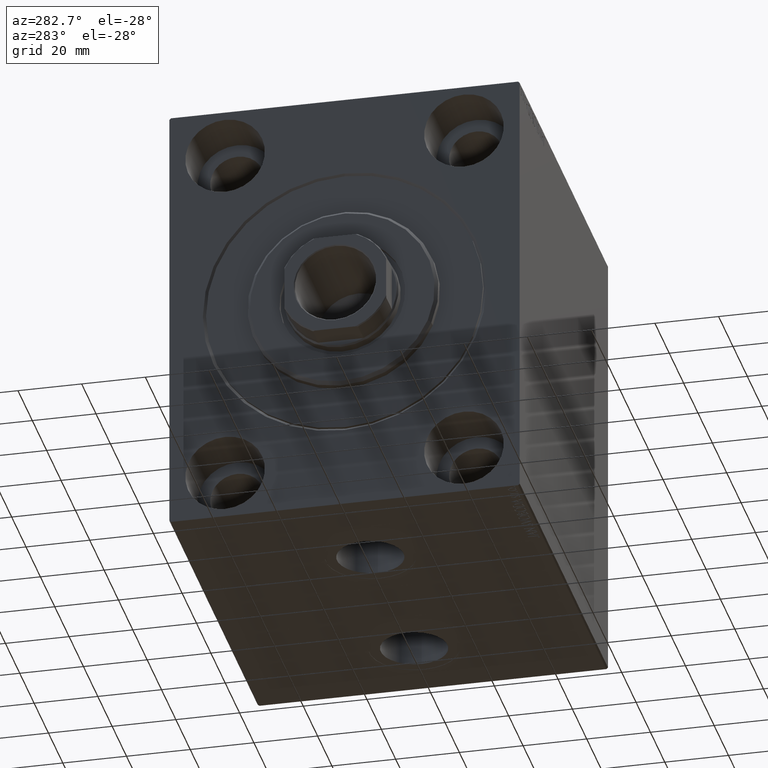
[diagram: clean part render]
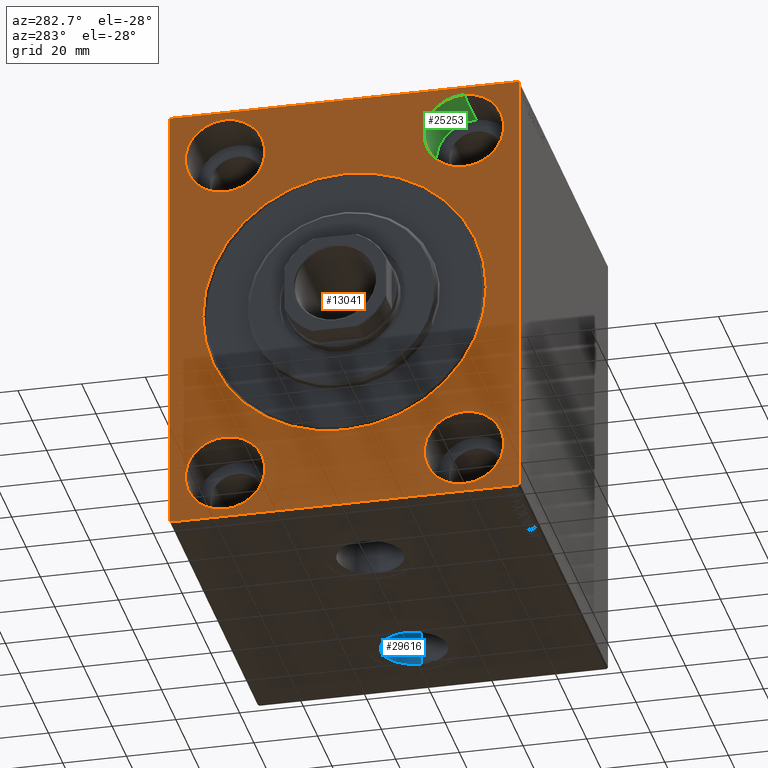
[diagram: same view with three faces highlighted in distinct colors, each labeled with its STEP entity id]
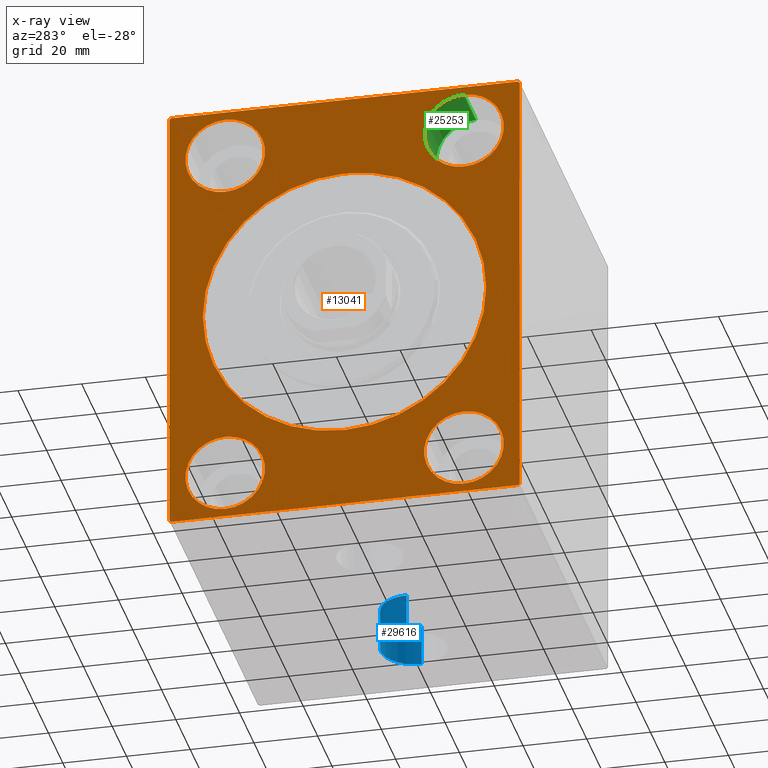
[diagram: x-ray of the same camera — body ghosted, the three highlighted faces saturated]
A machine part, auxiliary view with three faces highlighted in distinct colors.
The next image is the same camera in x-ray (body ghosted, the three faces saturated) — at least one of them is partly hidden behind the body in this view.
Their STEP definitions:

[orange] entity #13041 — the highlighted planar face has unit normal (1, 0, 0).
#368 = CARTESIAN_POINT ( 'NONE',  ( 0.000000000000000000, 54.49999999999999289, 70.00000000000000000 ) ) ;
#592 = PLANE ( 'NONE',  #4342 ) ;
#678 = CARTESIAN_POINT ( 'NONE',  ( 0.000000000000000000, 54.99999999999999289, 69.50000000000000000 ) ) ;
#905 = EDGE_LOOP ( 'NONE', ( #3699, #19877, #31545, #32181, #3441, #26418, #3486, #43349 ) ) ;
#1541 = DIRECTION ( 'NONE',  ( -1.000000000000000000, 0.000000000000000000, 0.000000000000000000 ) ) ;
#1833 = CARTESIAN_POINT ( 'NONE',  ( 0.000000000000000000, -37.50000000000000711, 55.00000000000000711 ) ) ;
#2081 = CARTESIAN_POINT ( 'NONE',  ( 0.000000000000000000, -55.00000000000000711, -69.50000000000007105 ) ) ;
#3178 = ORIENTED_EDGE ( 'NONE', *, *, #27347, .F. ) ;
#3441 = ORIENTED_EDGE ( 'NONE', *, *, #16307, .F. ) ;
#3486 = ORIENTED_EDGE ( 'NONE', *, *, #11565, .F. ) ;
#3699 = ORIENTED_EDGE ( 'NONE', *, *, #35076, .F. ) ;
#3733 = ORIENTED_EDGE ( 'NONE', *, *, #37913, .F. ) ;
#3775 = CARTESIAN_POINT ( 'NONE',  ( 0.000000000000000000, 54.49999999999999289, 70.00000000000000000 ) ) ;
#4229 = CARTESIAN_POINT ( 'NONE',  ( 0.000000000000000000, 0.000000000000000000, 0.000000000000000000 ) ) ;
#4342 = AXIS2_PLACEMENT_3D ( 'NONE', #30893, #17748, #17964 ) ;
#4411 = DIRECTION ( 'NONE',  ( 0.000000000000000000, 0.000000000000000000, 1.000000000000000000 ) ) ;
#4829 = CARTESIAN_POINT ( 'NONE',  ( 0.000000000000000000, -37.50000000000002132, -54.99999999999999289 ) ) ;
#4908 = CARTESIAN_POINT ( 'NONE',  ( 0.000000000000000000, -37.50000000000002132, -42.49999999999999289 ) ) ;
#4965 = CARTESIAN_POINT ( 'NONE',  ( 0.000000000000000000, 55.00000000000002132, -70.00000000000000000 ) ) ;
#5003 = AXIS2_PLACEMENT_3D ( 'NONE', #32264, #39389, #22706 ) ;
#5114 = CARTESIAN_POINT ( 'NONE',  ( 0.000000000000000000, -37.50000000000002132, -54.99999999999999289 ) ) ;
#5134 = AXIS2_PLACEMENT_3D ( 'NONE', #20125, #23690, #30135 ) ;
#5436 = DIRECTION ( 'NONE',  ( -0.000000000000000000, 0.7071067811865474617, 0.7071067811865474617 ) ) ;
#5691 = DIRECTION ( 'NONE',  ( 1.000000000000000000, 0.000000000000000000, 0.000000000000000000 ) ) ;
#5998 = CIRCLE ( 'NONE', #25197, 44.49999999999998579 ) ;
#6323 = CARTESIAN_POINT ( 'NONE',  ( 0.000000000000000000, -55.00000000000000711, 69.50000000000001421 ) ) ;
#6436 = VECTOR ( 'NONE', #29351, 1000.000000000000114 ) ;
#6630 = VERTEX_POINT ( 'NONE', #2081 ) ;
#6649 = EDGE_CURVE ( 'NONE', #37281, #20352, #29270, .T. ) ;
#6789 = VECTOR ( 'NONE', #37524, 999.9999999999998863 ) ;
#6804 = LINE ( 'NONE', #30628, #6789 ) ;
#7228 = EDGE_CURVE ( 'NONE', #22519, #29040, #32764, .T. ) ;
#7507 = FACE_BOUND ( 'NONE', #21310, .T. ) ;
#7511 = EDGE_LOOP ( 'NONE', ( #21088, #18630 ) ) ;
#7991 = VERTEX_POINT ( 'NONE', #22688 ) ;
#8146 = ORIENTED_EDGE ( 'NONE', *, *, #23048, .T. ) ;
#9251 = CARTESIAN_POINT ( 'NONE',  ( 0.000000000000000000, 0.000000000000000000, 0.000000000000000000 ) ) ;
#9309 = VERTEX_POINT ( 'NONE', #35559 ) ;
#9952 = EDGE_CURVE ( 'NONE', #32908, #14883, #17070, .T. ) ;
#10465 = EDGE_CURVE ( 'NONE', #30934, #25529, #39818, .T. ) ;
#10862 = EDGE_LOOP ( 'NONE', ( #8146, #25180 ) ) ;
#10891 = CARTESIAN_POINT ( 'NONE',  ( 0.000000000000000000, 37.50000000000000711, 55.00000000000000711 ) ) ;
#11554 = CIRCLE ( 'NONE', #5134, 12.49999999999999645 ) ;
#11565 = EDGE_CURVE ( 'NONE', #39815, #13161, #17197, .T. ) ;
#12017 = EDGE_CURVE ( 'NONE', #34245, #19608, #37555, .T. ) ;
#12028 = AXIS2_PLACEMENT_3D ( 'NONE', #9251, #5691, #25970 ) ;
#12565 = VERTEX_POINT ( 'NONE', #4908 ) ;
#12856 = CARTESIAN_POINT ( 'NONE',  ( 0.000000000000000000, 37.49999999999997868, -67.49999999999998579 ) ) ;
#13041 = ADVANCED_FACE ( 'NONE', ( #24440, #7507, #28203, #34233, #31541, #38008 ), #592, .F. ) ;
#13161 = VERTEX_POINT ( 'NONE', #18178 ) ;
#13329 = VECTOR ( 'NONE', #16568, 1000.000000000000000 ) ;
#13867 = DIRECTION ( 'NONE',  ( 0.000000000000000000, 1.000000000000000000, 2.523234146875355012E-16 ) ) ;
#14883 = VERTEX_POINT ( 'NONE', #15433 ) ;
#14921 = DIRECTION ( 'NONE',  ( 0.000000000000000000, 0.000000000000000000, -1.000000000000000000 ) ) ;
#15433 = CARTESIAN_POINT ( 'NONE',  ( 0.000000000000000000, -37.50000000000000711, 42.50000000000000711 ) ) ;
#15591 = CIRCLE ( 'NONE', #12028, 44.49999999999998579 ) ;
#16307 = EDGE_CURVE ( 'NONE', #31972, #19608, #32138, .T. ) ;
#16568 = DIRECTION ( 'NONE',  ( 0.000000000000000000, 0.000000000000000000, -1.000000000000000000 ) ) ;
#16961 = CARTESIAN_POINT ( 'NONE',  ( 0.000000000000000000, 37.49999999999997868, -54.99999999999999289 ) ) ;
#17070 = CIRCLE ( 'NONE', #27059, 12.49999999999999645 ) ;
#17197 = LINE ( 'NONE', #30772, #43407 ) ;
#17303 = DIRECTION ( 'NONE',  ( -0.000000000000000000, 0.7071067811865474617, -0.7071067811865474617 ) ) ;
#17316 = EDGE_CURVE ( 'NONE', #14883, #32908, #11554, .T. ) ;
#17433 = CARTESIAN_POINT ( 'NONE',  ( 0.000000000000000000, -55.00000000000000711, 69.99999999999998579 ) ) ;
#17748 = DIRECTION ( 'NONE',  ( 1.000000000000000000, 0.000000000000000000, 0.000000000000000000 ) ) ;
#17964 = DIRECTION ( 'NONE',  ( 0.000000000000000000, 0.000000000000000000, -1.000000000000000000 ) ) ;
#18178 = CARTESIAN_POINT ( 'NONE',  ( 0.000000000000000000, 54.50000000000004974, -70.00000000000000000 ) ) ;
#18489 = AXIS2_PLACEMENT_3D ( 'NONE', #10891, #34923, #4411 ) ;
#18630 = ORIENTED_EDGE ( 'NONE', *, *, #24015, .F. ) ;
#18921 = DIRECTION ( 'NONE',  ( 0.000000000000000000, 0.000000000000000000, 1.000000000000000000 ) ) ;
#19016 = CARTESIAN_POINT ( 'NONE',  ( 0.000000000000000000, -54.50000000000000711, -70.00000000000002842 ) ) ;
#19078 = CARTESIAN_POINT ( 'NONE',  ( 0.000000000000000000, -55.00000000000000711, 69.50000000000001421 ) ) ;
#19261 = VECTOR ( 'NONE', #17303, 1000.000000000000114 ) ;
#19333 = LINE ( 'NONE', #35790, #6436 ) ;
#19608 = VERTEX_POINT ( 'NONE', #678 ) ;
#19877 = ORIENTED_EDGE ( 'NONE', *, *, #6649, .T. ) ;
#20094 = DIRECTION ( 'NONE',  ( -1.000000000000000000, 0.000000000000000000, 0.000000000000000000 ) ) ;
#20125 = CARTESIAN_POINT ( 'NONE',  ( 0.000000000000000000, -37.50000000000000711, 55.00000000000000711 ) ) ;
#20219 = VECTOR ( 'NONE', #34525, 1000.000000000000000 ) ;
#20352 = VERTEX_POINT ( 'NONE', #34330 ) ;
#20767 = ORIENTED_EDGE ( 'NONE', *, *, #26608, .F. ) ;
#21088 = ORIENTED_EDGE ( 'NONE', *, *, #10465, .F. ) ;
#21310 = EDGE_LOOP ( 'NONE', ( #25698, #3178 ) ) ;
#21765 = DIRECTION ( 'NONE',  ( -1.000000000000000000, 0.000000000000000000, 0.000000000000000000 ) ) ;
#22519 = VERTEX_POINT ( 'NONE', #40928 ) ;
#22688 = CARTESIAN_POINT ( 'NONE',  ( 0.000000000000000000, 5.449678256205719615E-15, -44.49999999999998579 ) ) ;
#22706 = DIRECTION ( 'NONE',  ( 0.000000000000000000, 0.000000000000000000, 1.000000000000000000 ) ) ;
#23012 = EDGE_CURVE ( 'NONE', #34245, #20352, #27418, .T. ) ;
#23048 = EDGE_CURVE ( 'NONE', #9309, #7991, #5998, .T. ) ;
#23331 = CARTESIAN_POINT ( 'NONE',  ( 0.000000000000000000, 37.50000000000000711, 67.50000000000000000 ) ) ;
#23690 = DIRECTION ( 'NONE',  ( -1.000000000000000000, 0.000000000000000000, 0.000000000000000000 ) ) ;
#24015 = EDGE_CURVE ( 'NONE', #25529, #30934, #30920, .T. ) ;
#24440 = FACE_BOUND ( 'NONE', #10862, .T. ) ;
#25180 = ORIENTED_EDGE ( 'NONE', *, *, #39563, .T. ) ;
#25197 = AXIS2_PLACEMENT_3D ( 'NONE', #4229, #35380, #14921 ) ;
#25529 = VERTEX_POINT ( 'NONE', #28013 ) ;
#25698 = ORIENTED_EDGE ( 'NONE', *, *, #7228, .F. ) ;
#25970 = DIRECTION ( 'NONE',  ( 0.000000000000000000, 0.000000000000000000, -1.000000000000000000 ) ) ;
#26418 = ORIENTED_EDGE ( 'NONE', *, *, #43701, .T. ) ;
#26567 = DIRECTION ( 'NONE',  ( -1.000000000000000000, 0.000000000000000000, 0.000000000000000000 ) ) ;
#26608 = EDGE_CURVE ( 'NONE', #29733, #12565, #40833, .T. ) ;
#26609 = AXIS2_PLACEMENT_3D ( 'NONE', #16961, #20094, #43898 ) ;
#27059 = AXIS2_PLACEMENT_3D ( 'NONE', #1833, #26567, #29014 ) ;
#27347 = EDGE_CURVE ( 'NONE', #29040, #22519, #40101, .T. ) ;
#27418 = LINE ( 'NONE', #40988, #20219 ) ;
#27757 = VECTOR ( 'NONE', #5436, 1000.000000000000114 ) ;
#28013 = CARTESIAN_POINT ( 'NONE',  ( 0.000000000000000000, 37.50000000000000711, 42.50000000000000711 ) ) ;
#28203 = FACE_BOUND ( 'NONE', #31439, .T. ) ;
#29014 = DIRECTION ( 'NONE',  ( 0.000000000000000000, 0.000000000000000000, 1.000000000000000000 ) ) ;
#29040 = VERTEX_POINT ( 'NONE', #12856 ) ;
#29270 = LINE ( 'NONE', #6323, #27757 ) ;
#29351 = DIRECTION ( 'NONE',  ( 0.000000000000000000, -0.7071067811865474617, -0.7071067811865474617 ) ) ;
#29459 = AXIS2_PLACEMENT_3D ( 'NONE', #4829, #21765, #38674 ) ;
#29525 = DIRECTION ( 'NONE',  ( -1.000000000000000000, 0.000000000000000000, 0.000000000000000000 ) ) ;
#29733 = VERTEX_POINT ( 'NONE', #43168 ) ;
#30135 = DIRECTION ( 'NONE',  ( 0.000000000000000000, 0.000000000000000000, 1.000000000000000000 ) ) ;
#30628 = CARTESIAN_POINT ( 'NONE',  ( 0.000000000000000000, -54.50000000000000711, -70.00000000000002842 ) ) ;
#30772 = CARTESIAN_POINT ( 'NONE',  ( 0.000000000000000000, -55.00000000000000711, -70.00000000000002842 ) ) ;
#30859 = CARTESIAN_POINT ( 'NONE',  ( 0.000000000000000000, -37.50000000000000711, 67.50000000000000000 ) ) ;
#30893 = CARTESIAN_POINT ( 'NONE',  ( 0.000000000000000000, 0.000000000000000000, 0.000000000000000000 ) ) ;
#30920 = CIRCLE ( 'NONE', #36603, 12.49999999999999645 ) ;
#30934 = VERTEX_POINT ( 'NONE', #23331 ) ;
#31166 = EDGE_CURVE ( 'NONE', #39815, #6630, #6804, .T. ) ;
#31439 = EDGE_LOOP ( 'NONE', ( #36419, #42373 ) ) ;
#31541 = FACE_BOUND ( 'NONE', #40152, .T. ) ;
#31545 = ORIENTED_EDGE ( 'NONE', *, *, #23012, .F. ) ;
#31972 = VERTEX_POINT ( 'NONE', #34190 ) ;
#32138 = LINE ( 'NONE', #4965, #39276 ) ;
#32181 = ORIENTED_EDGE ( 'NONE', *, *, #12017, .T. ) ;
#32264 = CARTESIAN_POINT ( 'NONE',  ( 0.000000000000000000, 37.49999999999997868, -54.99999999999999289 ) ) ;
#32764 = CIRCLE ( 'NONE', #5003, 12.49999999999999645 ) ;
#32908 = VERTEX_POINT ( 'NONE', #30859 ) ;
#33427 = CIRCLE ( 'NONE', #36264, 12.49999999999999645 ) ;
#33529 = CARTESIAN_POINT ( 'NONE',  ( 0.000000000000000000, 37.50000000000000711, 55.00000000000000711 ) ) ;
#33698 = LINE ( 'NONE', #17433, #13329 ) ;
#34190 = CARTESIAN_POINT ( 'NONE',  ( 0.000000000000000000, 55.00000000000002132, -69.50000000000002842 ) ) ;
#34233 = FACE_BOUND ( 'NONE', #7511, .T. ) ;
#34245 = VERTEX_POINT ( 'NONE', #3775 ) ;
#34330 = CARTESIAN_POINT ( 'NONE',  ( 0.000000000000000000, -54.50000000000003553, 69.99999999999998579 ) ) ;
#34525 = DIRECTION ( 'NONE',  ( 0.000000000000000000, -1.000000000000000000, -1.261617073437677999E-16 ) ) ;
#34923 = DIRECTION ( 'NONE',  ( -1.000000000000000000, 0.000000000000000000, 0.000000000000000000 ) ) ;
#35076 = EDGE_CURVE ( 'NONE', #37281, #6630, #33698, .T. ) ;
#35248 = DIRECTION ( 'NONE',  ( 0.000000000000000000, -1.982541115402065110E-16, 1.000000000000000000 ) ) ;
#35380 = DIRECTION ( 'NONE',  ( 1.000000000000000000, 0.000000000000000000, 0.000000000000000000 ) ) ;
#35559 = CARTESIAN_POINT ( 'NONE',  ( 0.000000000000000000, 0.000000000000000000, 44.49999999999998579 ) ) ;
#35790 = CARTESIAN_POINT ( 'NONE',  ( 0.000000000000000000, 55.00000000000002132, -69.50000000000002842 ) ) ;
#36264 = AXIS2_PLACEMENT_3D ( 'NONE', #5114, #1541, #18921 ) ;
#36419 = ORIENTED_EDGE ( 'NONE', *, *, #9952, .F. ) ;
#36603 = AXIS2_PLACEMENT_3D ( 'NONE', #33529, #29525, #39537 ) ;
#37281 = VERTEX_POINT ( 'NONE', #19078 ) ;
#37524 = DIRECTION ( 'NONE',  ( -0.000000000000000000, -0.7071067811865771047, 0.7071067811865180408 ) ) ;
#37555 = LINE ( 'NONE', #368, #19261 ) ;
#37913 = EDGE_CURVE ( 'NONE', #12565, #29733, #33427, .T. ) ;
#38008 = FACE_OUTER_BOUND ( 'NONE', #905, .T. ) ;
#38674 = DIRECTION ( 'NONE',  ( 0.000000000000000000, 0.000000000000000000, 1.000000000000000000 ) ) ;
#39276 = VECTOR ( 'NONE', #35248, 1000.000000000000000 ) ;
#39389 = DIRECTION ( 'NONE',  ( -1.000000000000000000, 0.000000000000000000, 0.000000000000000000 ) ) ;
#39537 = DIRECTION ( 'NONE',  ( 0.000000000000000000, 0.000000000000000000, 1.000000000000000000 ) ) ;
#39563 = EDGE_CURVE ( 'NONE', #7991, #9309, #15591, .T. ) ;
#39815 = VERTEX_POINT ( 'NONE', #19016 ) ;
#39818 = CIRCLE ( 'NONE', #18489, 12.49999999999999645 ) ;
#40101 = CIRCLE ( 'NONE', #26609, 12.49999999999999645 ) ;
#40152 = EDGE_LOOP ( 'NONE', ( #3733, #20767 ) ) ;
#40833 = CIRCLE ( 'NONE', #29459, 12.49999999999999645 ) ;
#40928 = CARTESIAN_POINT ( 'NONE',  ( 0.000000000000000000, 37.49999999999997868, -42.49999999999999289 ) ) ;
#40988 = CARTESIAN_POINT ( 'NONE',  ( 0.000000000000000000, 54.99999999999999289, 70.00000000000000000 ) ) ;
#42373 = ORIENTED_EDGE ( 'NONE', *, *, #17316, .F. ) ;
#43168 = CARTESIAN_POINT ( 'NONE',  ( 0.000000000000000000, -37.50000000000002132, -67.49999999999998579 ) ) ;
#43349 = ORIENTED_EDGE ( 'NONE', *, *, #31166, .T. ) ;
#43407 = VECTOR ( 'NONE', #13867, 1000.000000000000000 ) ;
#43701 = EDGE_CURVE ( 'NONE', #31972, #13161, #19333, .T. ) ;
#43898 = DIRECTION ( 'NONE',  ( 0.000000000000000000, 0.000000000000000000, 1.000000000000000000 ) ) ;

[blue] entity #29616 — the highlighted cylindrical surface (edge-blend (fillet) strip) has radius 10.48 mm, axis along (-0, -0, -1).
#105 = EDGE_CURVE ( 'NONE', #35657, #18776, #2220, .T. ) ;
#1701 = DIRECTION ( 'NONE',  ( 0.000000000000000000, 0.000000000000000000, -1.000000000000000000 ) ) ;
#2064 = ORIENTED_EDGE ( 'NONE', *, *, #105, .T. ) ;
#2220 = LINE ( 'NONE', #15829, #26733 ) ;
#2423 = DIRECTION ( 'NONE',  ( -0.000000000000000000, -0.000000000000000000, -1.000000000000000000 ) ) ;
#2598 = EDGE_CURVE ( 'NONE', #18776, #13033, #24043, .T. ) ;
#2866 = DIRECTION ( 'NONE',  ( -1.000000000000000000, 0.000000000000000000, 0.000000000000000000 ) ) ;
#5054 = DIRECTION ( 'NONE',  ( -1.000000000000000000, 0.000000000000000000, 0.000000000000000000 ) ) ;
#6616 = ORIENTED_EDGE ( 'NONE', *, *, #27564, .F. ) ;
#6841 = ORIENTED_EDGE ( 'NONE', *, *, #2598, .T. ) ;
#10214 = CARTESIAN_POINT ( 'NONE',  ( 97.00000000000000000, 4.935141914942961818E-15, -57.00000000000001421 ) ) ;
#10293 = CIRCLE ( 'NONE', #20946, 10.48000000000000398 ) ;
#11151 = CARTESIAN_POINT ( 'NONE',  ( 86.51999999999999602, 4.935141914942961818E-15, -69.90000000000001990 ) ) ;
#11170 = CARTESIAN_POINT ( 'NONE',  ( 107.4800000000000040, 6.218571760449388096E-15, -57.00000000000001421 ) ) ;
#11273 = CARTESIAN_POINT ( 'NONE',  ( 107.4800000000000040, 6.218571760449388096E-15, -69.90000000000001990 ) ) ;
#12444 = VERTEX_POINT ( 'NONE', #11170 ) ;
#13033 = VERTEX_POINT ( 'NONE', #11273 ) ;
#13378 = AXIS2_PLACEMENT_3D ( 'NONE', #22211, #1701, #5054 ) ;
#15602 = DIRECTION ( 'NONE',  ( -0.000000000000000000, -0.000000000000000000, -1.000000000000000000 ) ) ;
#15829 = CARTESIAN_POINT ( 'NONE',  ( 86.51999999999999602, 4.935141914942961818E-15, -57.00000000000001421 ) ) ;
#16628 = DIRECTION ( 'NONE',  ( -0.000000000000000000, -0.000000000000000000, -1.000000000000000000 ) ) ;
#18776 = VERTEX_POINT ( 'NONE', #11151 ) ;
#20031 = CYLINDRICAL_SURFACE ( 'NONE', #43019, 10.48000000000000398 ) ;
#20946 = AXIS2_PLACEMENT_3D ( 'NONE', #42959, #43400, #29610 ) ;
#22211 = CARTESIAN_POINT ( 'NONE',  ( 97.00000000000000000, 4.935141914942961818E-15, -69.90000000000001990 ) ) ;
#23753 = LINE ( 'NONE', #36867, #29517 ) ;
#24043 = CIRCLE ( 'NONE', #13378, 10.48000000000000398 ) ;
#25713 = EDGE_CURVE ( 'NONE', #12444, #13033, #23753, .T. ) ;
#26733 = VECTOR ( 'NONE', #15602, 1000.000000000000000 ) ;
#27564 = EDGE_CURVE ( 'NONE', #35657, #12444, #10293, .T. ) ;
#29517 = VECTOR ( 'NONE', #16628, 1000.000000000000000 ) ;
#29610 = DIRECTION ( 'NONE',  ( -1.000000000000000000, 0.000000000000000000, 0.000000000000000000 ) ) ;
#29616 = ADVANCED_FACE ( 'NONE', ( #30259 ), #20031, .F. ) ;
#30259 = FACE_OUTER_BOUND ( 'NONE', #43904, .T. ) ;
#32642 = CARTESIAN_POINT ( 'NONE',  ( 86.51999999999999602, 4.935141914942961818E-15, -57.00000000000001421 ) ) ;
#35657 = VERTEX_POINT ( 'NONE', #32642 ) ;
#36867 = CARTESIAN_POINT ( 'NONE',  ( 107.4800000000000040, 6.218571760449388096E-15, -57.00000000000001421 ) ) ;
#42959 = CARTESIAN_POINT ( 'NONE',  ( 97.00000000000000000, 4.935141914942961818E-15, -57.00000000000001421 ) ) ;
#43019 = AXIS2_PLACEMENT_3D ( 'NONE', #10214, #2423, #2866 ) ;
#43359 = ORIENTED_EDGE ( 'NONE', *, *, #25713, .F. ) ;
#43400 = DIRECTION ( 'NONE',  ( 0.000000000000000000, 0.000000000000000000, -1.000000000000000000 ) ) ;
#43904 = EDGE_LOOP ( 'NONE', ( #43359, #6616, #2064, #6841 ) ) ;

[green] entity #25253 — the highlighted cylindrical surface (partial cylindrical patch) has radius 12.5 mm, axis along (-1, -0, -0).
#697 = VERTEX_POINT ( 'NONE', #13872 ) ;
#1833 = CARTESIAN_POINT ( 'NONE',  ( 0.000000000000000000, -37.50000000000000711, 55.00000000000000711 ) ) ;
#2954 = CARTESIAN_POINT ( 'NONE',  ( 17.00000000000000000, -37.50000000000000711, 42.50000000000000711 ) ) ;
#3208 = CARTESIAN_POINT ( 'NONE',  ( 17.00000000000000000, -37.50000000000000711, 42.50000000000000711 ) ) ;
#3707 = ORIENTED_EDGE ( 'NONE', *, *, #28910, .F. ) ;
#4009 = DIRECTION ( 'NONE',  ( -1.000000000000000000, -0.000000000000000000, -0.000000000000000000 ) ) ;
#6348 = ORIENTED_EDGE ( 'NONE', *, *, #9952, .T. ) ;
#6731 = CIRCLE ( 'NONE', #31603, 12.49999999999999645 ) ;
#7692 = EDGE_CURVE ( 'NONE', #11543, #14883, #41476, .T. ) ;
#9952 = EDGE_CURVE ( 'NONE', #32908, #14883, #17070, .T. ) ;
#11543 = VERTEX_POINT ( 'NONE', #2954 ) ;
#13872 = CARTESIAN_POINT ( 'NONE',  ( 17.00000000000000000, -37.50000000000000711, 67.50000000000000000 ) ) ;
#14269 = CARTESIAN_POINT ( 'NONE',  ( 17.00000000000000000, -37.50000000000000711, 55.00000000000000711 ) ) ;
#14648 = DIRECTION ( 'NONE',  ( -1.000000000000000000, 0.000000000000000000, 0.000000000000000000 ) ) ;
#14883 = VERTEX_POINT ( 'NONE', #15433 ) ;
#15303 = CARTESIAN_POINT ( 'NONE',  ( 17.00000000000000000, -37.50000000000000711, 55.00000000000000711 ) ) ;
#15433 = CARTESIAN_POINT ( 'NONE',  ( 0.000000000000000000, -37.50000000000000711, 42.50000000000000711 ) ) ;
#16463 = CARTESIAN_POINT ( 'NONE',  ( 17.00000000000000000, -37.50000000000000711, 67.50000000000000000 ) ) ;
#17070 = CIRCLE ( 'NONE', #27059, 12.49999999999999645 ) ;
#18529 = VECTOR ( 'NONE', #30809, 1000.000000000000000 ) ;
#21165 = CYLINDRICAL_SURFACE ( 'NONE', #41587, 12.49999999999999645 ) ;
#21759 = DIRECTION ( 'NONE',  ( 0.000000000000000000, 0.000000000000000000, 1.000000000000000000 ) ) ;
#23590 = DIRECTION ( 'NONE',  ( -1.000000000000000000, -0.000000000000000000, -0.000000000000000000 ) ) ;
#25137 = ORIENTED_EDGE ( 'NONE', *, *, #7692, .F. ) ;
#25253 = ADVANCED_FACE ( 'NONE', ( #31607 ), #21165, .F. ) ;
#26567 = DIRECTION ( 'NONE',  ( -1.000000000000000000, 0.000000000000000000, 0.000000000000000000 ) ) ;
#27059 = AXIS2_PLACEMENT_3D ( 'NONE', #1833, #26567, #29014 ) ;
#28272 = DIRECTION ( 'NONE',  ( 0.000000000000000000, 0.000000000000000000, 1.000000000000000000 ) ) ;
#28910 = EDGE_CURVE ( 'NONE', #697, #11543, #6731, .T. ) ;
#29014 = DIRECTION ( 'NONE',  ( 0.000000000000000000, 0.000000000000000000, 1.000000000000000000 ) ) ;
#30785 = ORIENTED_EDGE ( 'NONE', *, *, #31508, .T. ) ;
#30809 = DIRECTION ( 'NONE',  ( -1.000000000000000000, -0.000000000000000000, -0.000000000000000000 ) ) ;
#30859 = CARTESIAN_POINT ( 'NONE',  ( 0.000000000000000000, -37.50000000000000711, 67.50000000000000000 ) ) ;
#31508 = EDGE_CURVE ( 'NONE', #697, #32908, #40488, .T. ) ;
#31603 = AXIS2_PLACEMENT_3D ( 'NONE', #15303, #14648, #21759 ) ;
#31607 = FACE_OUTER_BOUND ( 'NONE', #37227, .T. ) ;
#32908 = VERTEX_POINT ( 'NONE', #30859 ) ;
#37227 = EDGE_LOOP ( 'NONE', ( #25137, #3707, #30785, #6348 ) ) ;
#40488 = LINE ( 'NONE', #16463, #42374 ) ;
#41476 = LINE ( 'NONE', #3208, #18529 ) ;
#41587 = AXIS2_PLACEMENT_3D ( 'NONE', #14269, #4009, #28272 ) ;
#42374 = VECTOR ( 'NONE', #23590, 1000.000000000000000 ) ;